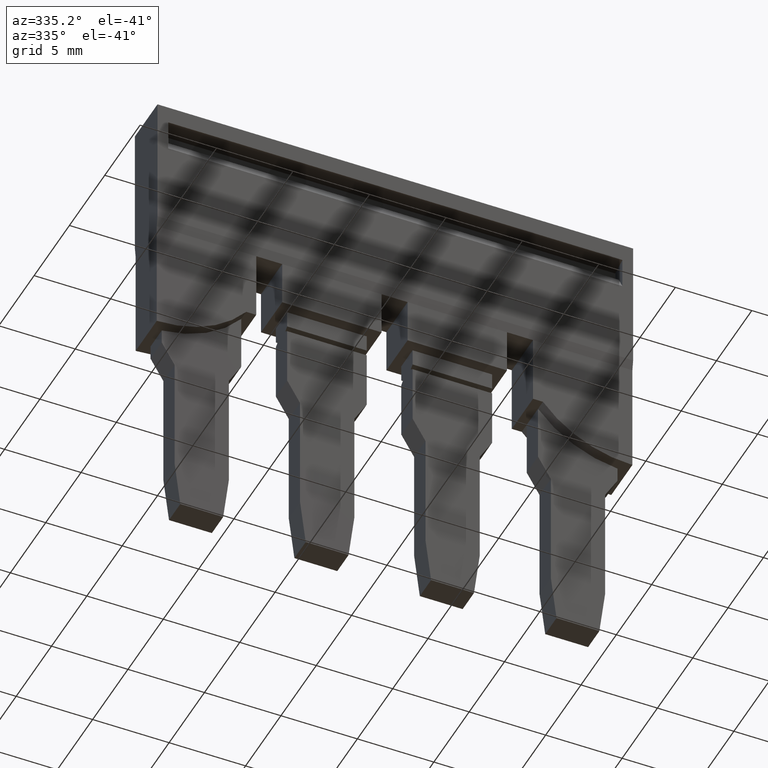
[diagram: clean part render]
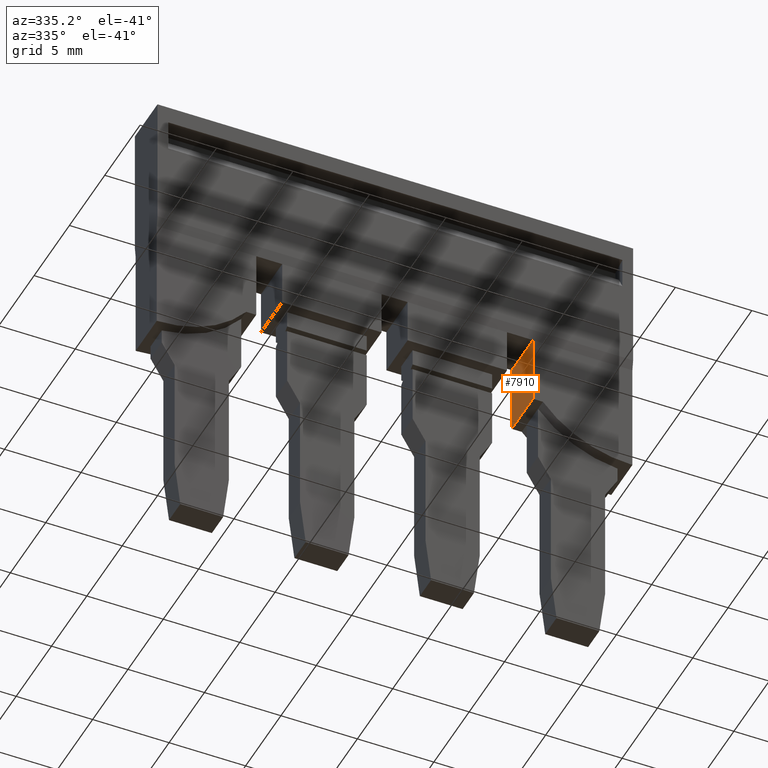
[diagram: same view with one face highlighted and labeled with its STEP entity id]
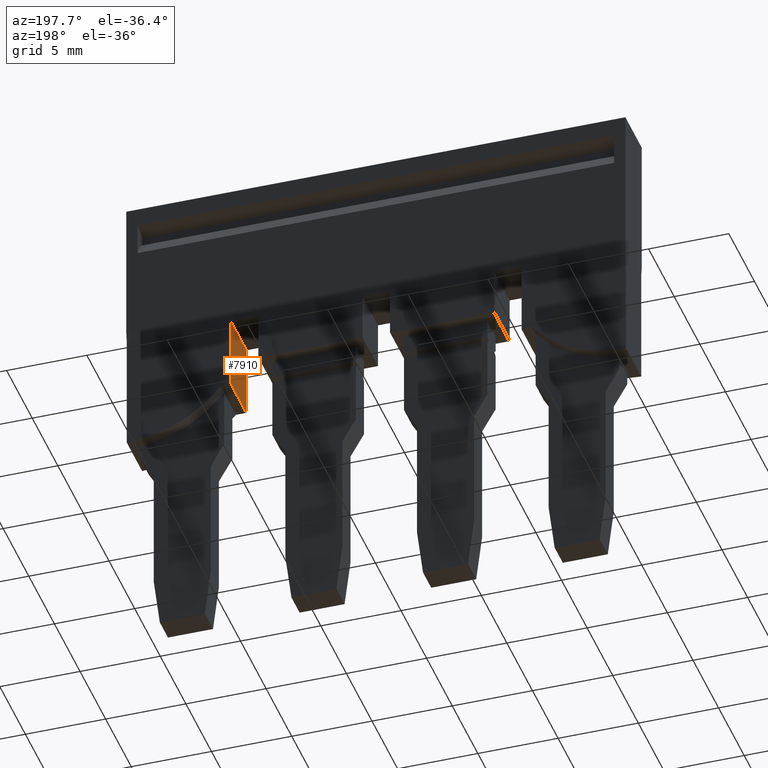
[diagram: same view with one face highlighted and labeled with its STEP entity id]
A machine part, auxiliary view. The second image highlights one B-rep face of the part: STEP entity #7910.
A second angle (auxiliary view) of the same face is appended — the face is thin or edge-on in the first view.
In plain terms, the highlighted planar face has unit normal (1, -0, -0).
Its self-contained STEP definition (entity closure, byte-faithful):
#3000=CARTESIAN_POINT('',(5.4855388607976,-20.0808348559681,
42.1099999999983));
#3010=VERTEX_POINT('',#3000);
#3040=CARTESIAN_POINT('',(5.4855388607976,-12.8979338181015,
42.1099999999983));
#3050=DIRECTION('',(0.,1.,0.));
#3060=VECTOR('',#3050,1.);
#3070=LINE('',#3040,#3060);
#3080=CARTESIAN_POINT('',(5.4855388607976,-15.4678098181019,
42.1099999999983));
#3090=VERTEX_POINT('',#3080);
#3100=EDGE_CURVE('',#3010,#3090,#3070,.T.);
#6370=CARTESIAN_POINT('',(5.48553886079759,-15.4678098181019,
42.1099999999983));
#6380=DIRECTION('',(1.,0.,3.08148791101958E-33));
#6390=VECTOR('',#6380,1.);
#6400=LINE('',#6370,#6390);
#6410=CARTESIAN_POINT('',(2.4855388607976,-15.4678098181019,
42.1099999999983));
#6420=VERTEX_POINT('',#6410);
#6430=EDGE_CURVE('',#6420,#3090,#6400,.T.);
#7680=CARTESIAN_POINT('',(5.4855388607976,-22.8678098181019,
42.1099999999983));
#7690=DIRECTION('',(3.08148791101958E-33,0.,-1.));
#7700=DIRECTION('',(0.,-1.,0.));
#7710=AXIS2_PLACEMENT_3D('',#7680,#7690,#7700);
#7720=PLANE('',#7710);
#7730=CARTESIAN_POINT('',(2.4855388607976,-12.8979338181015,
42.1099999999983));
#7740=DIRECTION('',(0.,1.,0.));
#7750=VECTOR('',#7740,1.);
#7760=LINE('',#7730,#7750);
#7770=CARTESIAN_POINT('',(2.4855388607976,-20.0808348559681,
42.1099999999983));
#7780=VERTEX_POINT('',#7770);
#7790=EDGE_CURVE('',#7780,#6420,#7760,.T.);
#7800=ORIENTED_EDGE('',*,*,#7790,.F.);
#7810=ORIENTED_EDGE('',*,*,#6430,.F.);
#7820=ORIENTED_EDGE('',*,*,#3100,.T.);
#7830=CARTESIAN_POINT('',(5.58553886079759,-20.0808348559681,
42.1099999999983));
#7840=DIRECTION('',(1.,9.45397489018929E-31,3.08148791101958E-33));
#7850=VECTOR('',#7840,1.);
#7860=LINE('',#7830,#7850);
#7870=EDGE_CURVE('',#7780,#3010,#7860,.T.);
#7880=ORIENTED_EDGE('',*,*,#7870,.T.);
#7890=EDGE_LOOP('',(#7880,#7820,#7810,#7800));
#7900=FACE_OUTER_BOUND('',#7890,.T.);
#7910=ADVANCED_FACE('',(#7900),#7720,.F.);